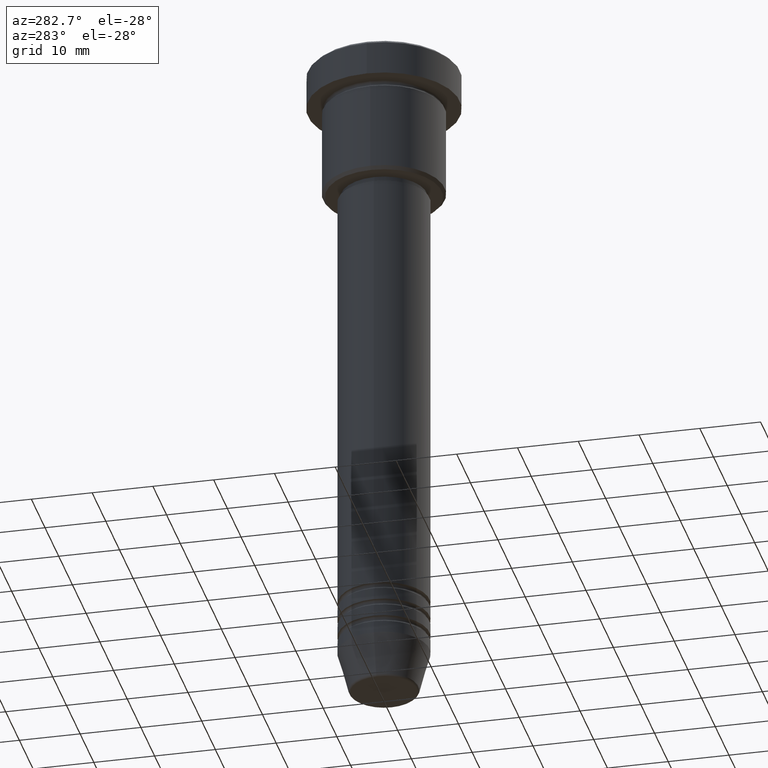
[diagram: clean part render]
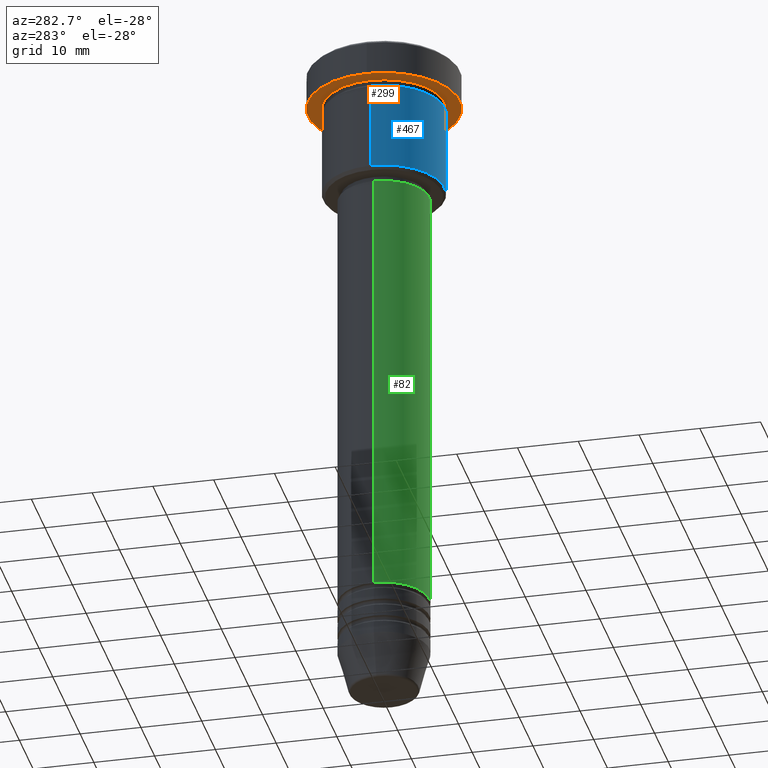
[diagram: same view with three faces highlighted in distinct colors, each labeled with its STEP entity id]
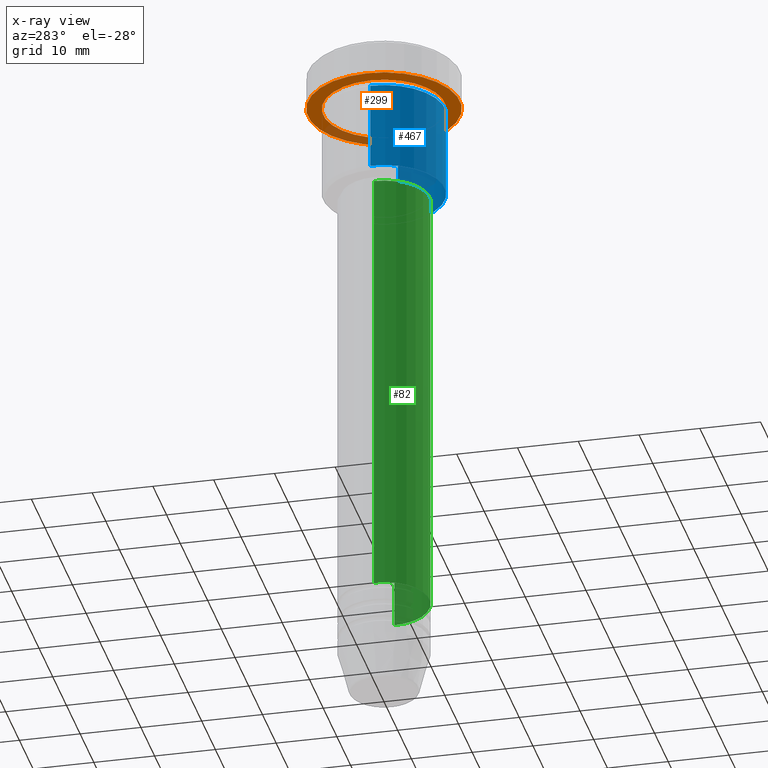
[diagram: x-ray of the same camera — body ghosted, the three highlighted faces saturated]
A machine part, auxiliary view with three faces highlighted in distinct colors.
The next image is the same camera in x-ray (body ghosted, the three faces saturated) — at least one of them is partly hidden behind the body in this view.
Their STEP definitions:

[orange] entity #299 — the highlighted planar face has unit normal (0, 0, -1).
#104 = ORIENTED_EDGE ( 'NONE', *, *, #1159, .F. ) ;
#107 = EDGE_LOOP ( 'NONE', ( #104, #611 ) ) ;
#123 = CARTESIAN_POINT ( 'NONE',  ( -12.50000000000000000, 1.530808498934191521E-15, -5.999999999999996447 ) ) ;
#124 = FACE_BOUND ( 'NONE', #472, .T. ) ;
#127 = DIRECTION ( 'NONE',  ( 1.000000000000000000, 0.000000000000000000, 0.000000000000000000 ) ) ;
#166 = EDGE_CURVE ( 'NONE', #532, #948, #1138, .T. ) ;
#167 = ORIENTED_EDGE ( 'NONE', *, *, #651, .T. ) ;
#188 = FACE_OUTER_BOUND ( 'NONE', #107, .T. ) ;
#204 = CARTESIAN_POINT ( 'NONE',  ( 0.000000000000000000, 0.000000000000000000, -5.999999999999996447 ) ) ;
#240 = PLANE ( 'NONE',  #614 ) ;
#293 = AXIS2_PLACEMENT_3D ( 'NONE', #950, #776, #127 ) ;
#299 = ADVANCED_FACE ( 'NONE', ( #124, #188 ), #240, .T. ) ;
#353 = VERTEX_POINT ( 'NONE', #703 ) ;
#361 = VERTEX_POINT ( 'NONE', #438 ) ;
#364 = AXIS2_PLACEMENT_3D ( 'NONE', #391, #385, #1109 ) ;
#367 = AXIS2_PLACEMENT_3D ( 'NONE', #585, #873, #867 ) ;
#385 = DIRECTION ( 'NONE',  ( -0.000000000000000000, -0.000000000000000000, 1.000000000000000000 ) ) ;
#391 = CARTESIAN_POINT ( 'NONE',  ( 0.000000000000000000, 0.000000000000000000, -5.999999999999996447 ) ) ;
#396 = DIRECTION ( 'NONE',  ( -0.000000000000000000, -0.000000000000000000, 1.000000000000000000 ) ) ;
#438 = CARTESIAN_POINT ( 'NONE',  ( 10.00000000000000000, 1.224646799147353256E-15, -5.999999999999996447 ) ) ;
#451 = CIRCLE ( 'NONE', #1158, 10.00000000000000000 ) ;
#469 = CIRCLE ( 'NONE', #293, 12.50000000000000000 ) ;
#472 = EDGE_LOOP ( 'NONE', ( #167, #912 ) ) ;
#532 = VERTEX_POINT ( 'NONE', #123 ) ;
#585 = CARTESIAN_POINT ( 'NONE',  ( 0.000000000000000000, 0.000000000000000000, -5.999999999999996447 ) ) ;
#607 = EDGE_CURVE ( 'NONE', #361, #353, #451, .T. ) ;
#611 = ORIENTED_EDGE ( 'NONE', *, *, #166, .F. ) ;
#614 = AXIS2_PLACEMENT_3D ( 'NONE', #1062, #792, #1095 ) ;
#651 = EDGE_CURVE ( 'NONE', #353, #361, #1106, .T. ) ;
#653 = DIRECTION ( 'NONE',  ( -1.000000000000000000, 0.000000000000000000, 0.000000000000000000 ) ) ;
#703 = CARTESIAN_POINT ( 'NONE',  ( -10.00000000000000000, 0.000000000000000000, -5.999999999999996447 ) ) ;
#722 = CARTESIAN_POINT ( 'NONE',  ( 12.50000000000000000, 0.000000000000000000, -5.999999999999996447 ) ) ;
#776 = DIRECTION ( 'NONE',  ( -0.000000000000000000, -0.000000000000000000, 1.000000000000000000 ) ) ;
#792 = DIRECTION ( 'NONE',  ( 0.000000000000000000, 0.000000000000000000, -1.000000000000000000 ) ) ;
#867 = DIRECTION ( 'NONE',  ( -1.000000000000000000, 0.000000000000000000, 0.000000000000000000 ) ) ;
#873 = DIRECTION ( 'NONE',  ( -0.000000000000000000, -0.000000000000000000, 1.000000000000000000 ) ) ;
#912 = ORIENTED_EDGE ( 'NONE', *, *, #607, .T. ) ;
#948 = VERTEX_POINT ( 'NONE', #722 ) ;
#950 = CARTESIAN_POINT ( 'NONE',  ( 0.000000000000000000, 0.000000000000000000, -5.999999999999996447 ) ) ;
#1062 = CARTESIAN_POINT ( 'NONE',  ( 0.000000000000000000, 12.50000000000000000, -5.999999999999996447 ) ) ;
#1095 = DIRECTION ( 'NONE',  ( -1.000000000000000000, 0.000000000000000000, -0.000000000000000000 ) ) ;
#1106 = CIRCLE ( 'NONE', #367, 10.00000000000000000 ) ;
#1109 = DIRECTION ( 'NONE',  ( 1.000000000000000000, 0.000000000000000000, 0.000000000000000000 ) ) ;
#1138 = CIRCLE ( 'NONE', #364, 12.50000000000000000 ) ;
#1158 = AXIS2_PLACEMENT_3D ( 'NONE', #204, #396, #653 ) ;
#1159 = EDGE_CURVE ( 'NONE', #948, #532, #469, .T. ) ;

[blue] entity #467 — the highlighted cylindrical surface (partial cylindrical patch) has radius 10 mm, axis along (-0, -0, 1).
#18 = DIRECTION ( 'NONE',  ( -0.000000000000000000, -0.000000000000000000, 1.000000000000000000 ) ) ;
#64 = CARTESIAN_POINT ( 'NONE',  ( 0.000000000000000000, 0.000000000000000000, 0.000000000000000000 ) ) ;
#88 = CIRCLE ( 'NONE', #1119, 10.00000000000000000 ) ;
#162 = VERTEX_POINT ( 'NONE', #828 ) ;
#170 = VECTOR ( 'NONE', #18, 1000.000000000000000 ) ;
#171 = ORIENTED_EDGE ( 'NONE', *, *, #434, .T. ) ;
#196 = EDGE_CURVE ( 'NONE', #925, #162, #847, .T. ) ;
#211 = EDGE_CURVE ( 'NONE', #162, #254, #88, .T. ) ;
#235 = ORIENTED_EDGE ( 'NONE', *, *, #196, .F. ) ;
#254 = VERTEX_POINT ( 'NONE', #498 ) ;
#291 = CIRCLE ( 'NONE', #654, 10.00000000000000000 ) ;
#329 = ORIENTED_EDGE ( 'NONE', *, *, #762, .T. ) ;
#349 = CARTESIAN_POINT ( 'NONE',  ( -10.00000000000000000, 1.224646799147353256E-15, -21.49999999999997513 ) ) ;
#355 = DIRECTION ( 'NONE',  ( -0.000000000000000000, -0.000000000000000000, 1.000000000000000000 ) ) ;
#383 = EDGE_LOOP ( 'NONE', ( #235, #329, #171, #547 ) ) ;
#411 = CARTESIAN_POINT ( 'NONE',  ( 0.000000000000000000, 0.000000000000000000, -21.49999999999997513 ) ) ;
#434 = EDGE_CURVE ( 'NONE', #926, #254, #1161, .T. ) ;
#467 = ADVANCED_FACE ( 'NONE', ( #736 ), #1007, .T. ) ;
#468 = AXIS2_PLACEMENT_3D ( 'NONE', #64, #799, #1154 ) ;
#498 = CARTESIAN_POINT ( 'NONE',  ( 10.00000000000000000, 0.000000000000000000, -6.999999999999996447 ) ) ;
#547 = ORIENTED_EDGE ( 'NONE', *, *, #211, .F. ) ;
#654 = AXIS2_PLACEMENT_3D ( 'NONE', #411, #855, #1114 ) ;
#669 = DIRECTION ( 'NONE',  ( 1.000000000000000000, 0.000000000000000000, 0.000000000000000000 ) ) ;
#676 = CARTESIAN_POINT ( 'NONE',  ( -10.00000000000000000, 1.224646799147353256E-15, 0.000000000000000000 ) ) ;
#717 = CARTESIAN_POINT ( 'NONE',  ( 10.00000000000000000, 0.000000000000000000, -21.49999999999997513 ) ) ;
#736 = FACE_OUTER_BOUND ( 'NONE', #383, .T. ) ;
#762 = EDGE_CURVE ( 'NONE', #925, #926, #291, .T. ) ;
#799 = DIRECTION ( 'NONE',  ( -0.000000000000000000, -0.000000000000000000, 1.000000000000000000 ) ) ;
#823 = VECTOR ( 'NONE', #355, 1000.000000000000000 ) ;
#828 = CARTESIAN_POINT ( 'NONE',  ( -10.00000000000000000, 1.224646799147353256E-15, -6.999999999999996447 ) ) ;
#847 = LINE ( 'NONE', #676, #170 ) ;
#851 = CARTESIAN_POINT ( 'NONE',  ( 0.000000000000000000, 0.000000000000000000, -6.999999999999996447 ) ) ;
#855 = DIRECTION ( 'NONE',  ( -0.000000000000000000, -0.000000000000000000, 1.000000000000000000 ) ) ;
#925 = VERTEX_POINT ( 'NONE', #349 ) ;
#926 = VERTEX_POINT ( 'NONE', #717 ) ;
#1007 = CYLINDRICAL_SURFACE ( 'NONE', #468, 10.00000000000000000 ) ;
#1037 = DIRECTION ( 'NONE',  ( -0.000000000000000000, -0.000000000000000000, 1.000000000000000000 ) ) ;
#1066 = CARTESIAN_POINT ( 'NONE',  ( 10.00000000000000000, 0.000000000000000000, 0.000000000000000000 ) ) ;
#1114 = DIRECTION ( 'NONE',  ( -1.000000000000000000, 0.000000000000000000, 0.000000000000000000 ) ) ;
#1119 = AXIS2_PLACEMENT_3D ( 'NONE', #851, #1037, #669 ) ;
#1154 = DIRECTION ( 'NONE',  ( 1.000000000000000000, 0.000000000000000000, 0.000000000000000000 ) ) ;
#1161 = LINE ( 'NONE', #1066, #823 ) ;

[green] entity #82 — the highlighted cylindrical surface (partial cylindrical patch) has radius 7.5 mm, axis along (-0, -0, 1).
#4 = EDGE_CURVE ( 'NONE', #657, #528, #715, .T. ) ;
#42 = CARTESIAN_POINT ( 'NONE',  ( 7.500000000000000000, 0.000000000000000000, -95.99999999999997158 ) ) ;
#50 = AXIS2_PLACEMENT_3D ( 'NONE', #1093, #1003, #184 ) ;
#82 = ADVANCED_FACE ( 'NONE', ( #821 ), #734, .T. ) ;
#142 = DIRECTION ( 'NONE',  ( -0.000000000000000000, -0.000000000000000000, 1.000000000000000000 ) ) ;
#184 = DIRECTION ( 'NONE',  ( 1.000000000000000000, 0.000000000000000000, 0.000000000000000000 ) ) ;
#280 = CARTESIAN_POINT ( 'NONE',  ( -7.500000000000000000, 9.184850993605147944E-16, 0.000000000000000000 ) ) ;
#334 = EDGE_CURVE ( 'NONE', #633, #756, #431, .T. ) ;
#335 = AXIS2_PLACEMENT_3D ( 'NONE', #601, #142, #786 ) ;
#390 = CARTESIAN_POINT ( 'NONE',  ( 7.500000000000000000, 0.000000000000000000, -23.00000000000001421 ) ) ;
#407 = DIRECTION ( 'NONE',  ( 1.000000000000000000, 0.000000000000000000, 0.000000000000000000 ) ) ;
#431 = LINE ( 'NONE', #280, #576 ) ;
#470 = EDGE_LOOP ( 'NONE', ( #1139, #617, #1030, #743 ) ) ;
#528 = VERTEX_POINT ( 'NONE', #390 ) ;
#552 = EDGE_CURVE ( 'NONE', #633, #657, #716, .T. ) ;
#576 = VECTOR ( 'NONE', #810, 1000.000000000000000 ) ;
#588 = CARTESIAN_POINT ( 'NONE',  ( -7.500000000000000000, 9.184850993605147944E-16, -23.00000000000001421 ) ) ;
#601 = CARTESIAN_POINT ( 'NONE',  ( 0.000000000000000000, 0.000000000000000000, -23.00000000000001421 ) ) ;
#617 = ORIENTED_EDGE ( 'NONE', *, *, #552, .T. ) ;
#633 = VERTEX_POINT ( 'NONE', #837 ) ;
#657 = VERTEX_POINT ( 'NONE', #42 ) ;
#715 = LINE ( 'NONE', #1175, #754 ) ;
#716 = CIRCLE ( 'NONE', #1141, 7.500000000000000000 ) ;
#734 = CYLINDRICAL_SURFACE ( 'NONE', #50, 7.500000000000000000 ) ;
#743 = ORIENTED_EDGE ( 'NONE', *, *, #840, .F. ) ;
#754 = VECTOR ( 'NONE', #1162, 1000.000000000000000 ) ;
#756 = VERTEX_POINT ( 'NONE', #588 ) ;
#786 = DIRECTION ( 'NONE',  ( 1.000000000000000000, 0.000000000000000000, 0.000000000000000000 ) ) ;
#810 = DIRECTION ( 'NONE',  ( -0.000000000000000000, -0.000000000000000000, 1.000000000000000000 ) ) ;
#821 = FACE_OUTER_BOUND ( 'NONE', #470, .T. ) ;
#837 = CARTESIAN_POINT ( 'NONE',  ( -7.500000000000000000, 9.184850993605147944E-16, -95.99999999999997158 ) ) ;
#840 = EDGE_CURVE ( 'NONE', #756, #528, #898, .T. ) ;
#898 = CIRCLE ( 'NONE', #335, 7.500000000000000000 ) ;
#1003 = DIRECTION ( 'NONE',  ( -0.000000000000000000, -0.000000000000000000, 1.000000000000000000 ) ) ;
#1024 = CARTESIAN_POINT ( 'NONE',  ( 0.000000000000000000, 0.000000000000000000, -95.99999999999997158 ) ) ;
#1030 = ORIENTED_EDGE ( 'NONE', *, *, #4, .T. ) ;
#1093 = CARTESIAN_POINT ( 'NONE',  ( 0.000000000000000000, 0.000000000000000000, 0.000000000000000000 ) ) ;
#1124 = DIRECTION ( 'NONE',  ( -0.000000000000000000, -0.000000000000000000, 1.000000000000000000 ) ) ;
#1139 = ORIENTED_EDGE ( 'NONE', *, *, #334, .F. ) ;
#1141 = AXIS2_PLACEMENT_3D ( 'NONE', #1024, #1124, #407 ) ;
#1162 = DIRECTION ( 'NONE',  ( -0.000000000000000000, -0.000000000000000000, 1.000000000000000000 ) ) ;
#1175 = CARTESIAN_POINT ( 'NONE',  ( 7.500000000000000000, 0.000000000000000000, 0.000000000000000000 ) ) ;